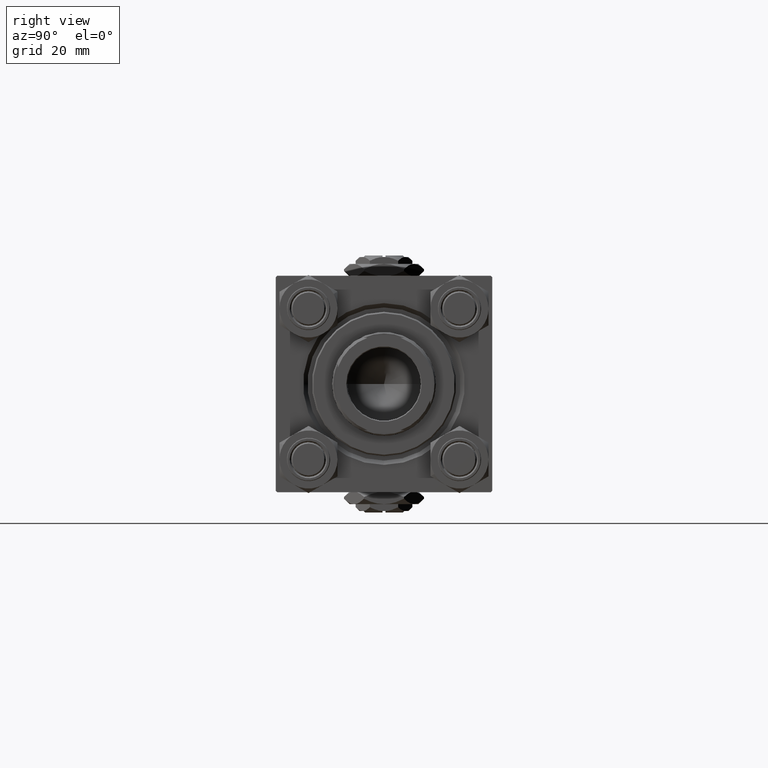
[diagram: clean part render]
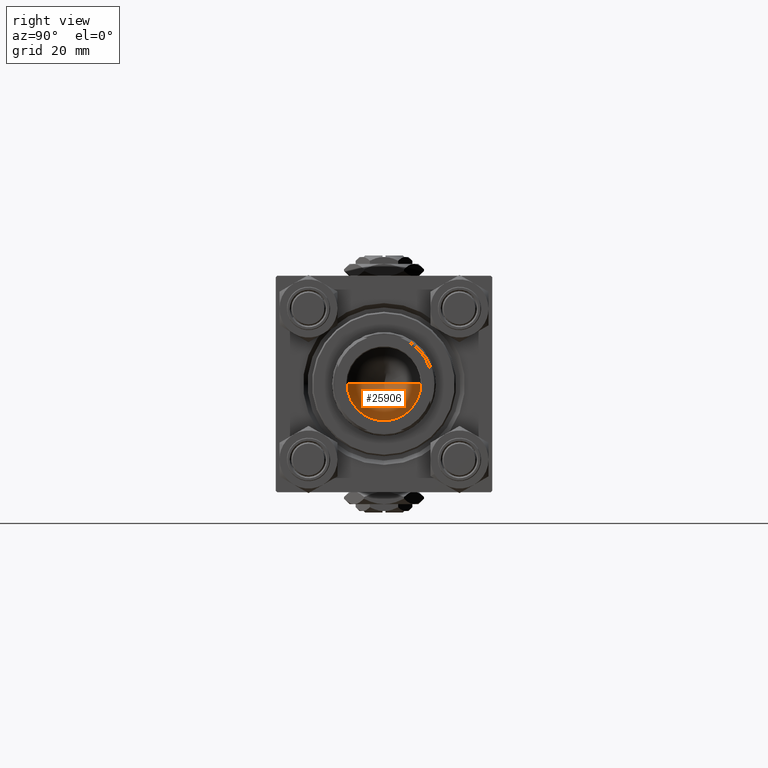
[diagram: same view with one face highlighted and labeled with its STEP entity id]
A machine part, right view. The second image highlights one B-rep face of the part: STEP entity #25906.
In plain terms, the highlighted conical surface has half-angle 59 deg.
Its self-contained STEP definition (entity closure, byte-faithful):
#26 = FACE_OUTER_BOUND ( 'NONE', #8366, .T. ) ;
#5445 = EDGE_CURVE ( 'NONE', #26416, #31301, #16203, .T. ) ;
#5945 = ORIENTED_EDGE ( 'NONE', *, *, #15815, .T. ) ;
#6078 = CARTESIAN_POINT ( 'NONE',  ( 12.74999999999998934, 0.000000000000000000, 97.00000000000001421 ) ) ;
#6467 = CARTESIAN_POINT ( 'NONE',  ( -12.74999999999998934, 1.561424668912873928E-15, 97.00000000000001421 ) ) ;
#8366 = EDGE_LOOP ( 'NONE', ( #10376, #28771, #5945 ) ) ;
#10376 = ORIENTED_EDGE ( 'NONE', *, *, #43168, .F. ) ;
#12055 = DIRECTION ( 'NONE',  ( -0.000000000000000000, -0.000000000000000000, 1.000000000000000000 ) ) ;
#15815 = EDGE_CURVE ( 'NONE', #31301, #25007, #30337, .T. ) ;
#16203 = LINE ( 'NONE', #35051, #21843 ) ;
#19334 = CARTESIAN_POINT ( 'NONE',  ( -12.74999999999998934, 1.561424668912873928E-15, 97.00000000000001421 ) ) ;
#21678 = LINE ( 'NONE', #6467, #41428 ) ;
#21843 = VECTOR ( 'NONE', #47116, 1000.000000000000000 ) ;
#24923 = CARTESIAN_POINT ( 'NONE',  ( -1.410643066818227497E-14, 0.000000000000000000, 89.33902710739862130 ) ) ;
#25007 = VERTEX_POINT ( 'NONE', #19334 ) ;
#25906 = ADVANCED_FACE ( 'NONE', ( #26 ), #30553, .F. ) ;
#26416 = VERTEX_POINT ( 'NONE', #24923 ) ;
#28771 = ORIENTED_EDGE ( 'NONE', *, *, #5445, .T. ) ;
#30337 = CIRCLE ( 'NONE', #32729, 12.74999999999998934 ) ;
#30469 = CARTESIAN_POINT ( 'NONE',  ( 0.000000000000000000, 0.000000000000000000, 97.00000000000001421 ) ) ;
#30553 = CONICAL_SURFACE ( 'NONE', #42244, 12.74999999999998934, 1.029744258676653423 ) ;
#31301 = VERTEX_POINT ( 'NONE', #6078 ) ;
#32729 = AXIS2_PLACEMENT_3D ( 'NONE', #30469, #34650, #46446 ) ;
#34650 = DIRECTION ( 'NONE',  ( -0.000000000000000000, -0.000000000000000000, 1.000000000000000000 ) ) ;
#35051 = CARTESIAN_POINT ( 'NONE',  ( 12.74999999999998934, 0.000000000000000000, 97.00000000000001421 ) ) ;
#37399 = DIRECTION ( 'NONE',  ( 1.000000000000000000, 0.000000000000000000, 0.000000000000000000 ) ) ;
#37624 = DIRECTION ( 'NONE',  ( -0.8571673007021117785, 1.049727191138617956E-16, 0.5150380749100550437 ) ) ;
#41428 = VECTOR ( 'NONE', #37624, 1000.000000000000000 ) ;
#42244 = AXIS2_PLACEMENT_3D ( 'NONE', #47940, #12055, #37399 ) ;
#43168 = EDGE_CURVE ( 'NONE', #26416, #25007, #21678, .T. ) ;
#46446 = DIRECTION ( 'NONE',  ( 1.000000000000000000, 0.000000000000000000, 0.000000000000000000 ) ) ;
#47116 = DIRECTION ( 'NONE',  ( 0.8571673007021117785, 0.000000000000000000, 0.5150380749100550437 ) ) ;
#47940 = CARTESIAN_POINT ( 'NONE',  ( 0.000000000000000000, 0.000000000000000000, 97.00000000000001421 ) ) ;